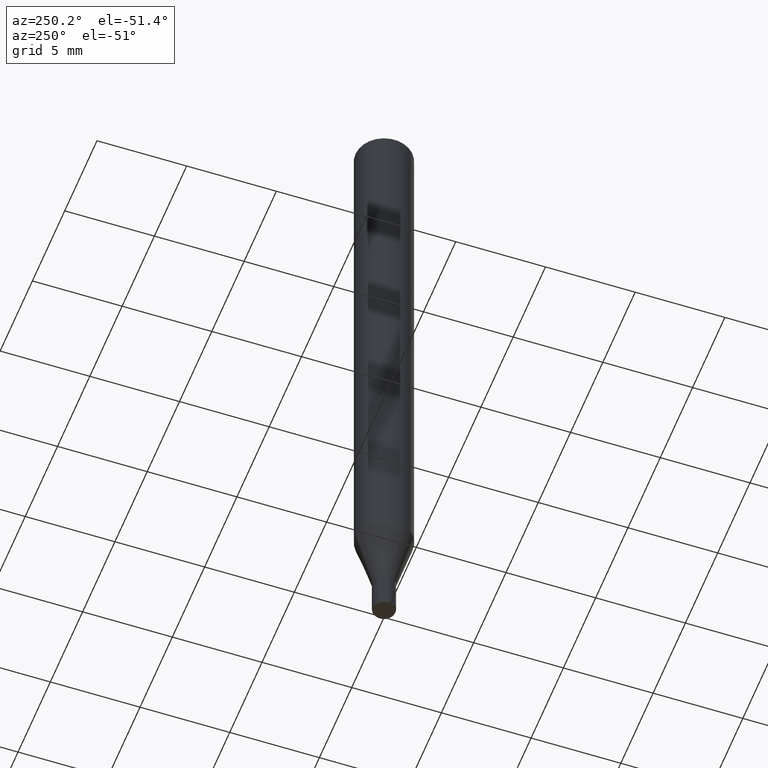
[diagram: clean part render]
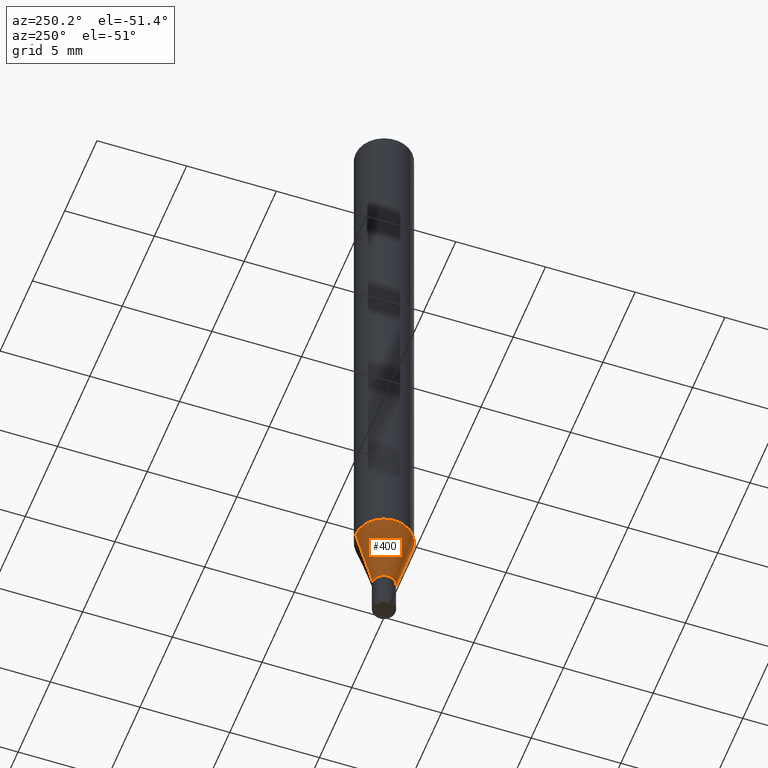
[diagram: same view with one face highlighted and labeled with its STEP entity id]
A machine part, auxiliary view. The second image highlights one B-rep face of the part: STEP entity #400.
In plain terms, the highlighted conical surface has half-angle 15 deg.
Its self-contained STEP definition (entity closure, byte-faithful):
#17 = CARTESIAN_POINT ( 'NONE',  ( 1.776356839400603332E-16, 0.02499999999999516151, -1.415000000000000258 ) ) ;
#53 = LINE ( 'NONE', #17, #95 ) ;
#70 = EDGE_CURVE ( 'NONE', #103, #170, #511, .T. ) ;
#71 = ORIENTED_EDGE ( 'NONE', *, *, #321, .F. ) ;
#95 = VECTOR ( 'NONE', #341, 39.37007874015748854 ) ;
#103 = VERTEX_POINT ( 'NONE', #206 ) ;
#107 = DIRECTION ( 'NONE',  ( -2.445546592424236492E-29, 3.491369944521436528E-15, 1.000000000000000000 ) ) ;
#123 = ORIENTED_EDGE ( 'NONE', *, *, #508, .T. ) ;
#146 = CONICAL_SURFACE ( 'NONE', #276, 0.02500000000000010200, 0.2617993877991493523 ) ;
#156 = DIRECTION ( 'NONE',  ( -2.445546592424236492E-29, 3.491369944521436528E-15, 1.000000000000000000 ) ) ;
#170 = VERTEX_POINT ( 'NONE', #448 ) ;
#182 = CARTESIAN_POINT ( 'NONE',  ( 3.108624468950771410E-16, 0.02499999999999516151, -1.415000000000000258 ) ) ;
#189 = ORIENTED_EDGE ( 'NONE', *, *, #264, .T. ) ;
#206 = CARTESIAN_POINT ( 'NONE',  ( 4.440892098500935790E-16, 0.06249999999999553135, -1.275048094716167979 ) ) ;
#208 = DIRECTION ( 'NONE',  ( -1.807323732225323434E-15, -0.2588190451025172423, 0.9659258262890690894 ) ) ;
#210 = CIRCLE ( 'NONE', #363, 0.02500000000000010200 ) ;
#244 = VERTEX_POINT ( 'NONE', #255 ) ;
#250 = ORIENTED_EDGE ( 'NONE', *, *, #70, .F. ) ;
#255 = CARTESIAN_POINT ( 'NONE',  ( -1.745740669421227467E-16, -0.02500000000000503902, -1.415000000000000258 ) ) ;
#264 = EDGE_CURVE ( 'NONE', #244, #170, #302, .T. ) ;
#276 = AXIS2_PLACEMENT_3D ( 'NONE', #410, #313, #311 ) ;
#302 = LINE ( 'NONE', #453, #382 ) ;
#307 = CARTESIAN_POINT ( 'NONE',  ( 3.460448428280295330E-29, -4.940288471497833014E-15, -1.415000000000000258 ) ) ;
#311 = DIRECTION ( 'NONE',  ( -6.982962677686265922E-15, -1.000000000000000000, 0.000000000000000000 ) ) ;
#313 = DIRECTION ( 'NONE',  ( -2.445546592424236492E-29, 3.491369944521436528E-15, 1.000000000000000000 ) ) ;
#314 = DIRECTION ( 'NONE',  ( -6.982962677686265922E-15, -1.000000000000000000, 4.370956789862821150E-15 ) ) ;
#321 = EDGE_CURVE ( 'NONE', #380, #103, #53, .T. ) ;
#341 = DIRECTION ( 'NONE',  ( 1.839019923739593610E-15, 0.2588190451025240146, 0.9659258262890673130 ) ) ;
#344 = FACE_OUTER_BOUND ( 'NONE', #461, .T. ) ;
#363 = AXIS2_PLACEMENT_3D ( 'NONE', #307, #107, #512 ) ;
#380 = VERTEX_POINT ( 'NONE', #182 ) ;
#382 = VECTOR ( 'NONE', #208, 39.37007874015748854 ) ;
#400 = ADVANCED_FACE ( 'NONE', ( #344 ), #146, .T. ) ;
#410 = CARTESIAN_POINT ( 'NONE',  ( 3.460448428280295330E-29, -4.940288471497833014E-15, -1.415000000000000258 ) ) ;
#448 = CARTESIAN_POINT ( 'NONE',  ( -4.364351673553606080E-16, -0.06250000000000446865, -1.275048094716167535 ) ) ;
#453 = CARTESIAN_POINT ( 'NONE',  ( -1.745740669421227467E-16, -0.02500000000000503902, -1.415000000000000258 ) ) ;
#461 = EDGE_LOOP ( 'NONE', ( #71, #123, #189, #250 ) ) ;
#494 = AXIS2_PLACEMENT_3D ( 'NONE', #510, #156, #314 ) ;
#508 = EDGE_CURVE ( 'NONE', #380, #244, #210, .T. ) ;
#510 = CARTESIAN_POINT ( 'NONE',  ( 3.118189523210138983E-29, -4.451664595711349999E-15, -1.275048094716167757 ) ) ;
#511 = CIRCLE ( 'NONE', #494, 0.06250000000000000000 ) ;
#512 = DIRECTION ( 'NONE',  ( -6.982962677686265922E-15, -1.000000000000000000, 0.000000000000000000 ) ) ;